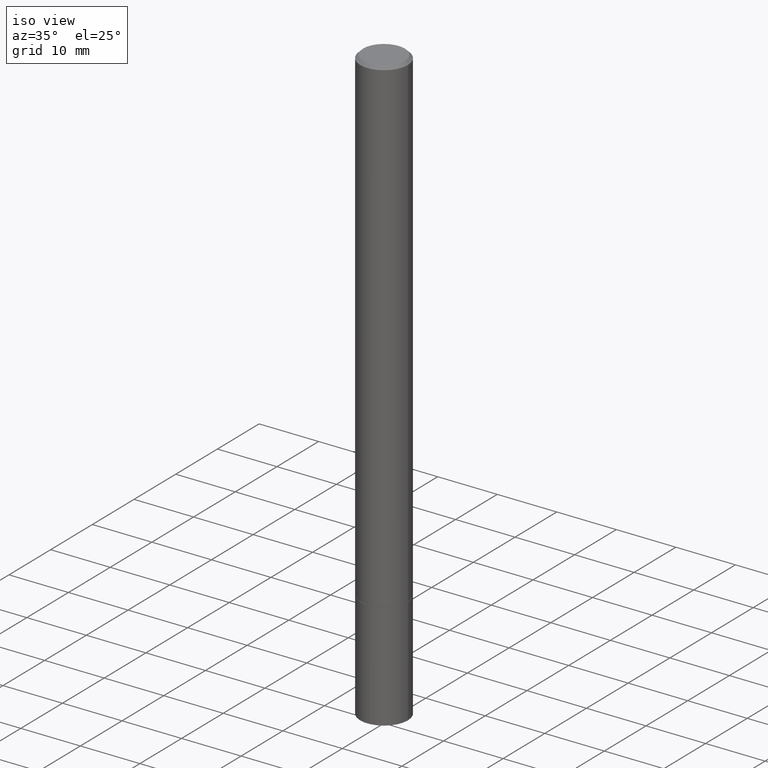
[diagram: clean part render]
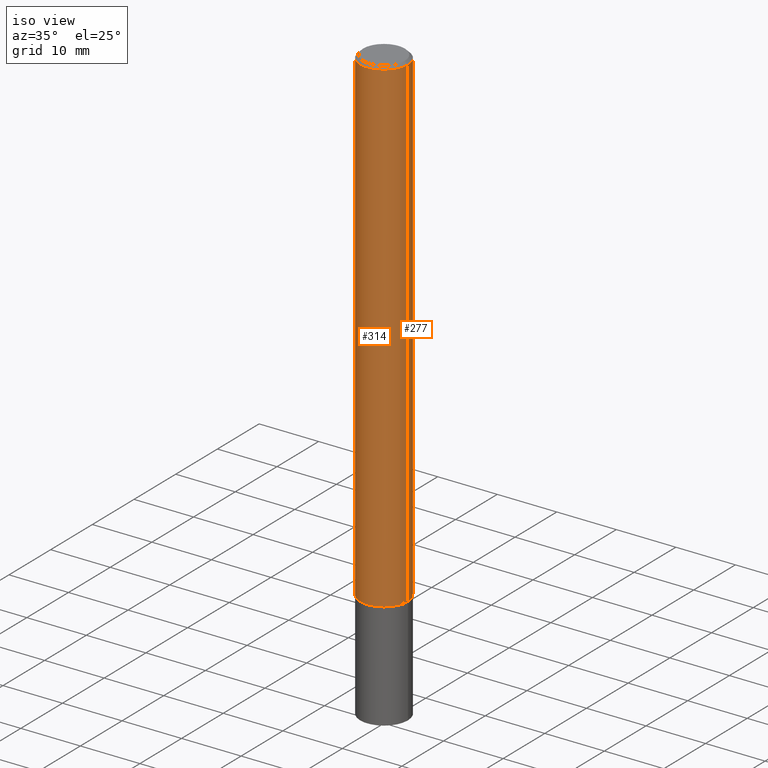
[diagram: same view with one multi-face feature highlighted, each face labeled with its STEP entity id]
A machine part, iso view. The highlighted faces form ONE feature: a constant-radius fillet chain: 2 tangent blend faces with common blend radius 4.0005 mm. The faces share edges in the B-rep.
Their STEP definitions:
[1] entity #277 (Cylinder):
#19 = DIRECTION ( 'NONE',  ( -2.445468806185136597E-29, 3.491481338843145583E-15, 1.000000000000000000 ) ) ;
#21 = DIRECTION ( 'NONE',  ( -2.445468806185136597E-29, 3.491481338843145583E-15, 1.000000000000000000 ) ) ;
#22 = DIRECTION ( 'NONE',  ( 1.000000000000000000, -6.982962677686265922E-15, 0.000000000000000000 ) ) ;
#23 = AXIS2_PLACEMENT_3D ( 'NONE', #331, #19, #22 ) ;
#30 = CIRCLE ( 'NONE', #133, 0.1575000000000000011 ) ;
#37 = CARTESIAN_POINT ( 'NONE',  ( -0.1574999999999997513, 1.119104808822156026E-15, -7.747322767151464373E-30 ) ) ;
#48 = DIRECTION ( 'NONE',  ( -2.445468806185136597E-29, 3.491481338843145583E-15, 1.000000000000000000 ) ) ;
#50 = VERTEX_POINT ( 'NONE', #113 ) ;
#53 = VERTEX_POINT ( 'NONE', #309 ) ;
#62 = LINE ( 'NONE', #37, #108 ) ;
#67 = LINE ( 'NONE', #156, #262 ) ;
#82 = ORIENTED_EDGE ( 'NONE', *, *, #289, .T. ) ;
#99 = CARTESIAN_POINT ( 'NONE',  ( 0.000000000000000000, 0.000000000000000000, 0.000000000000000000 ) ) ;
#108 = VECTOR ( 'NONE', #227, 39.37007874015748143 ) ;
#110 = VERTEX_POINT ( 'NONE', #205 ) ;
#113 = CARTESIAN_POINT ( 'NONE',  ( 0.1575000000000000011, -1.236787434658407249E-14, -3.227300000000000502 ) ) ;
#114 = EDGE_CURVE ( 'NONE', #50, #324, #67, .T. ) ;
#123 = FACE_OUTER_BOUND ( 'NONE', #297, .T. ) ;
#133 = AXIS2_PLACEMENT_3D ( 'NONE', #296, #21, #157 ) ;
#156 = CARTESIAN_POINT ( 'NONE',  ( 0.1574999999999997513, -1.099816621735585311E-15, 7.679978421878586823E-30 ) ) ;
#157 = DIRECTION ( 'NONE',  ( 1.000000000000000000, -6.982962677686261977E-15, 0.000000000000000000 ) ) ;
#165 = CIRCLE ( 'NONE', #23, 0.1574999999999995570 ) ;
#174 = ORIENTED_EDGE ( 'NONE', *, *, #221, .T. ) ;
#183 = DIRECTION ( 'NONE',  ( -2.445468806185136877E-29, 3.491481338843145188E-15, 1.000000000000000000 ) ) ;
#205 = CARTESIAN_POINT ( 'NONE',  ( -0.1574999999999995570, 1.029986994958720829E-15, -0.02000000000000003511 ) ) ;
#221 = EDGE_CURVE ( 'NONE', #53, #110, #62, .T. ) ;
#227 = DIRECTION ( 'NONE',  ( -2.445468806185136877E-29, 3.491481338843145188E-15, 1.000000000000000000 ) ) ;
#246 = ORIENTED_EDGE ( 'NONE', *, *, #114, .F. ) ;
#262 = VECTOR ( 'NONE', #183, 39.37007874015748143 ) ;
#270 = CARTESIAN_POINT ( 'NONE',  ( 0.1574999999999995570, -1.150358061425876119E-15, -0.02000000000000003511 ) ) ;
#277 = ADVANCED_FACE ( 'NONE', ( #123 ), #301, .T. ) ;
#289 = EDGE_CURVE ( 'NONE', #50, #53, #30, .T. ) ;
#290 = DIRECTION ( 'NONE',  ( 1.000000000000000000, -6.982962677686266711E-15, 4.876176775795935793E-29 ) ) ;
#293 = ORIENTED_EDGE ( 'NONE', *, *, #304, .F. ) ;
#296 = CARTESIAN_POINT ( 'NONE',  ( 7.892261478201291515E-29, -1.126805772484848580E-14, -3.227300000000000502 ) ) ;
#297 = EDGE_LOOP ( 'NONE', ( #82, #174, #293, #246 ) ) ;
#301 = CYLINDRICAL_SURFACE ( 'NONE', #302, 0.1574999999999997513 ) ;
#302 = AXIS2_PLACEMENT_3D ( 'NONE', #99, #48, #290 ) ;
#304 = EDGE_CURVE ( 'NONE', #324, #110, #165, .T. ) ;
#309 = CARTESIAN_POINT ( 'NONE',  ( -0.1575000000000000011, -4.549838866990506689E-15, -3.227300000000000502 ) ) ;
#324 = VERTEX_POINT ( 'NONE', #270 ) ;
#331 = CARTESIAN_POINT ( 'NONE',  ( 4.890937612370281041E-31, -6.982962677686302702E-17, -0.02000000000000003511 ) ) ;
[2] entity #314 (Cylinder):
#4 = DIRECTION ( 'NONE',  ( 1.000000000000000000, -6.982962677686265922E-15, 0.000000000000000000 ) ) ;
#25 = CARTESIAN_POINT ( 'NONE',  ( 0.000000000000000000, 0.000000000000000000, 0.000000000000000000 ) ) ;
#37 = CARTESIAN_POINT ( 'NONE',  ( -0.1574999999999997513, 1.119104808822156026E-15, -7.747322767151464373E-30 ) ) ;
#43 = EDGE_CURVE ( 'NONE', #110, #324, #268, .T. ) ;
#50 = VERTEX_POINT ( 'NONE', #113 ) ;
#53 = VERTEX_POINT ( 'NONE', #309 ) ;
#62 = LINE ( 'NONE', #37, #108 ) ;
#67 = LINE ( 'NONE', #156, #262 ) ;
#71 = EDGE_LOOP ( 'NONE', ( #272, #343, #306, #303 ) ) ;
#103 = EDGE_CURVE ( 'NONE', #53, #50, #137, .T. ) ;
#108 = VECTOR ( 'NONE', #227, 39.37007874015748143 ) ;
#110 = VERTEX_POINT ( 'NONE', #205 ) ;
#113 = CARTESIAN_POINT ( 'NONE',  ( 0.1575000000000000011, -1.236787434658407249E-14, -3.227300000000000502 ) ) ;
#114 = EDGE_CURVE ( 'NONE', #50, #324, #67, .T. ) ;
#129 = DIRECTION ( 'NONE',  ( 1.000000000000000000, -6.982962677686266711E-15, 4.876176775795935793E-29 ) ) ;
#131 = FACE_OUTER_BOUND ( 'NONE', #71, .T. ) ;
#137 = CIRCLE ( 'NONE', #144, 0.1575000000000000011 ) ;
#142 = CARTESIAN_POINT ( 'NONE',  ( 4.890937612370281041E-31, -6.982962677686302702E-17, -0.02000000000000003511 ) ) ;
#144 = AXIS2_PLACEMENT_3D ( 'NONE', #335, #255, #320 ) ;
#156 = CARTESIAN_POINT ( 'NONE',  ( 0.1574999999999997513, -1.099816621735585311E-15, 7.679978421878586823E-30 ) ) ;
#183 = DIRECTION ( 'NONE',  ( -2.445468806185136877E-29, 3.491481338843145188E-15, 1.000000000000000000 ) ) ;
#205 = CARTESIAN_POINT ( 'NONE',  ( -0.1574999999999995570, 1.029986994958720829E-15, -0.02000000000000003511 ) ) ;
#221 = EDGE_CURVE ( 'NONE', #53, #110, #62, .T. ) ;
#227 = DIRECTION ( 'NONE',  ( -2.445468806185136877E-29, 3.491481338843145188E-15, 1.000000000000000000 ) ) ;
#248 = DIRECTION ( 'NONE',  ( -2.445468806185136597E-29, 3.491481338843145583E-15, 1.000000000000000000 ) ) ;
#255 = DIRECTION ( 'NONE',  ( -2.445468806185136597E-29, 3.491481338843145583E-15, 1.000000000000000000 ) ) ;
#262 = VECTOR ( 'NONE', #183, 39.37007874015748143 ) ;
#268 = CIRCLE ( 'NONE', #346, 0.1574999999999995570 ) ;
#269 = AXIS2_PLACEMENT_3D ( 'NONE', #25, #355, #129 ) ;
#270 = CARTESIAN_POINT ( 'NONE',  ( 0.1574999999999995570, -1.150358061425876119E-15, -0.02000000000000003511 ) ) ;
#272 = ORIENTED_EDGE ( 'NONE', *, *, #221, .F. ) ;
#303 = ORIENTED_EDGE ( 'NONE', *, *, #43, .F. ) ;
#306 = ORIENTED_EDGE ( 'NONE', *, *, #114, .T. ) ;
#309 = CARTESIAN_POINT ( 'NONE',  ( -0.1575000000000000011, -4.549838866990506689E-15, -3.227300000000000502 ) ) ;
#314 = ADVANCED_FACE ( 'NONE', ( #131 ), #363, .T. ) ;
#320 = DIRECTION ( 'NONE',  ( 1.000000000000000000, -6.982962677686261977E-15, 0.000000000000000000 ) ) ;
#324 = VERTEX_POINT ( 'NONE', #270 ) ;
#335 = CARTESIAN_POINT ( 'NONE',  ( 7.892261478201291515E-29, -1.126805772484848580E-14, -3.227300000000000502 ) ) ;
#343 = ORIENTED_EDGE ( 'NONE', *, *, #103, .T. ) ;
#346 = AXIS2_PLACEMENT_3D ( 'NONE', #142, #248, #4 ) ;
#355 = DIRECTION ( 'NONE',  ( -2.445468806185136597E-29, 3.491481338843145583E-15, 1.000000000000000000 ) ) ;
#363 = CYLINDRICAL_SURFACE ( 'NONE', #269, 0.1574999999999997513 ) ;